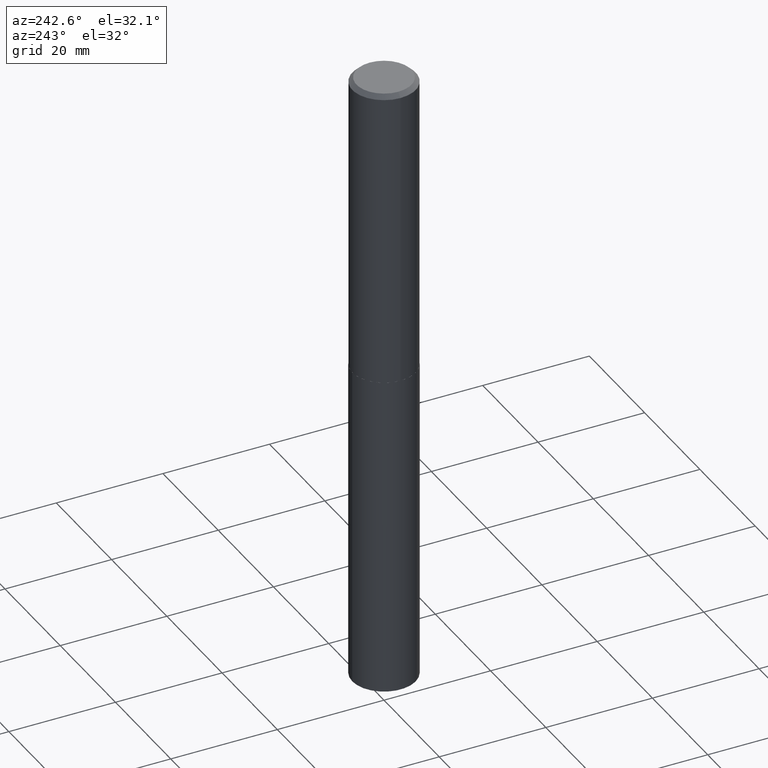
[diagram: clean part render]
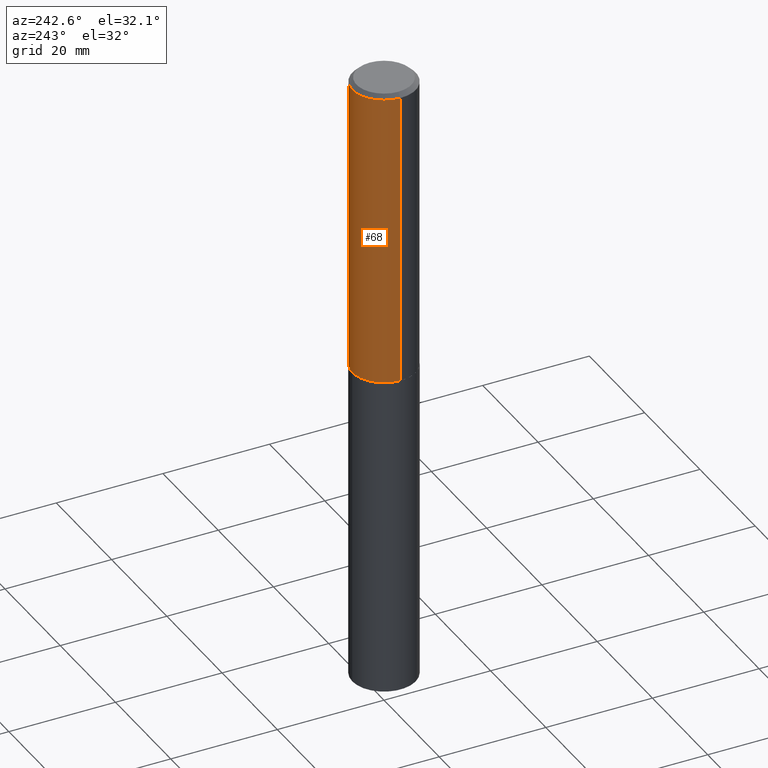
[diagram: same view with one face highlighted and labeled with its STEP entity id]
A machine part, auxiliary view. The second image highlights one B-rep face of the part: STEP entity #68.
In plain terms, the highlighted cylindrical surface (edge-blend (fillet) strip) has radius 5.9538 mm, axis along (-0, 0, 1).
Its self-contained STEP definition (entity closure, byte-faithful):
#1 = CARTESIAN_POINT ( 'NONE',  ( 0.2344000000000001638, -1.636806451649662094E-15, 1.142975836246568276E-29 ) ) ;
#5 = DIRECTION ( 'NONE',  ( 1.000000000000000000, -6.982962677686266711E-15, 4.876176775795936353E-29 ) ) ;
#18 = CARTESIAN_POINT ( 'NONE',  ( -0.2343999999999999972, -2.261618750275622168E-15, -0.03125000000000022204 ) ) ;
#19 = EDGE_CURVE ( 'NONE', #148, #388, #271, .T. ) ;
#24 = EDGE_CURVE ( 'NONE', #148, #33, #272, .T. ) ;
#28 = AXIS2_PLACEMENT_3D ( 'NONE', #166, #126, #70 ) ;
#33 = VERTEX_POINT ( 'NONE', #97 ) ;
#65 = EDGE_CURVE ( 'NONE', #388, #333, #198, .T. ) ;
#68 = ADVANCED_FACE ( 'NONE', ( #368 ), #341, .T. ) ;
#70 = DIRECTION ( 'NONE',  ( 1.000000000000000000, -6.982962677686266711E-15, 0.000000000000000000 ) ) ;
#84 = LINE ( 'NONE', #115, #274 ) ;
#86 = ORIENTED_EDGE ( 'NONE', *, *, #24, .T. ) ;
#91 = ORIENTED_EDGE ( 'NONE', *, *, #19, .F. ) ;
#97 = CARTESIAN_POINT ( 'NONE',  ( -0.2344000000000003026, -6.079640881334072812E-15, -2.218300000000000161 ) ) ;
#110 = VECTOR ( 'NONE', #117, 39.37007874015748143 ) ;
#115 = CARTESIAN_POINT ( 'NONE',  ( -0.2344000000000001638, 1.665512172621675999E-15, -1.152998385155750805E-29 ) ) ;
#117 = DIRECTION ( 'NONE',  ( -2.445468806185136877E-29, 3.491481338843145188E-15, 1.000000000000000000 ) ) ;
#120 = DIRECTION ( 'NONE',  ( -2.445468806185136877E-29, 3.491481338843145188E-15, 1.000000000000000000 ) ) ;
#126 = DIRECTION ( 'NONE',  ( -2.445468806185136597E-29, 3.491481338843145583E-15, 1.000000000000000000 ) ) ;
#139 = EDGE_LOOP ( 'NONE', ( #86, #258, #325, #91 ) ) ;
#148 = VERTEX_POINT ( 'NONE', #283 ) ;
#156 = CARTESIAN_POINT ( 'NONE',  ( 0.2343999999999999972, -1.745915243488510011E-15, -0.03125000000000022204 ) ) ;
#166 = CARTESIAN_POINT ( 'NONE',  ( 7.642090019328606165E-31, -1.091087918388490760E-16, -0.03125000000000022204 ) ) ;
#192 = DIRECTION ( 'NONE',  ( -2.445468806185136597E-29, 3.491481338843145583E-15, 1.000000000000000000 ) ) ;
#198 = CIRCLE ( 'NONE', #28, 0.2343999999999999972 ) ;
#213 = DIRECTION ( 'NONE',  ( -2.445468806185136597E-29, 3.491481338843145583E-15, 1.000000000000000000 ) ) ;
#258 = ORIENTED_EDGE ( 'NONE', *, *, #375, .T. ) ;
#271 = LINE ( 'NONE', #1, #110 ) ;
#272 = CIRCLE ( 'NONE', #340, 0.2344000000000003026 ) ;
#274 = VECTOR ( 'NONE', #120, 39.37007874015748143 ) ;
#283 = CARTESIAN_POINT ( 'NONE',  ( 0.2344000000000003026, -9.381959505605412877E-15, -2.218300000000000161 ) ) ;
#296 = CARTESIAN_POINT ( 'NONE',  ( 5.424783452760487854E-29, -7.745153053955749600E-15, -2.218300000000000161 ) ) ;
#297 = AXIS2_PLACEMENT_3D ( 'NONE', #304, #192, #5 ) ;
#304 = CARTESIAN_POINT ( 'NONE',  ( 0.000000000000000000, 0.000000000000000000, 0.000000000000000000 ) ) ;
#325 = ORIENTED_EDGE ( 'NONE', *, *, #65, .F. ) ;
#333 = VERTEX_POINT ( 'NONE', #18 ) ;
#340 = AXIS2_PLACEMENT_3D ( 'NONE', #296, #213, #356 ) ;
#341 = CYLINDRICAL_SURFACE ( 'NONE', #297, 0.2344000000000001638 ) ;
#356 = DIRECTION ( 'NONE',  ( 1.000000000000000000, -6.982962677686265133E-15, 0.000000000000000000 ) ) ;
#368 = FACE_OUTER_BOUND ( 'NONE', #139, .T. ) ;
#375 = EDGE_CURVE ( 'NONE', #33, #333, #84, .T. ) ;
#388 = VERTEX_POINT ( 'NONE', #156 ) ;